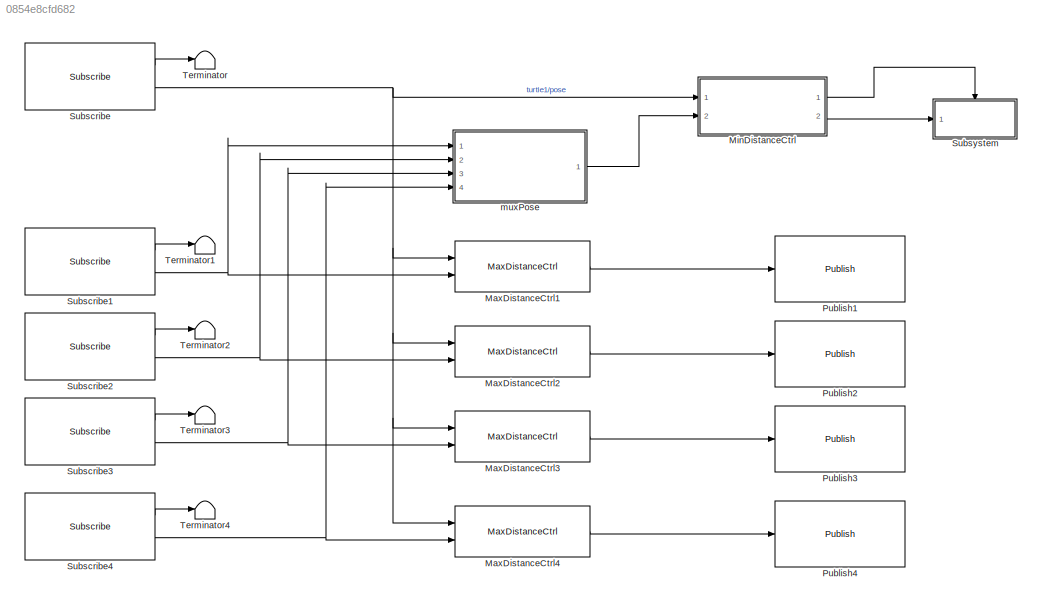
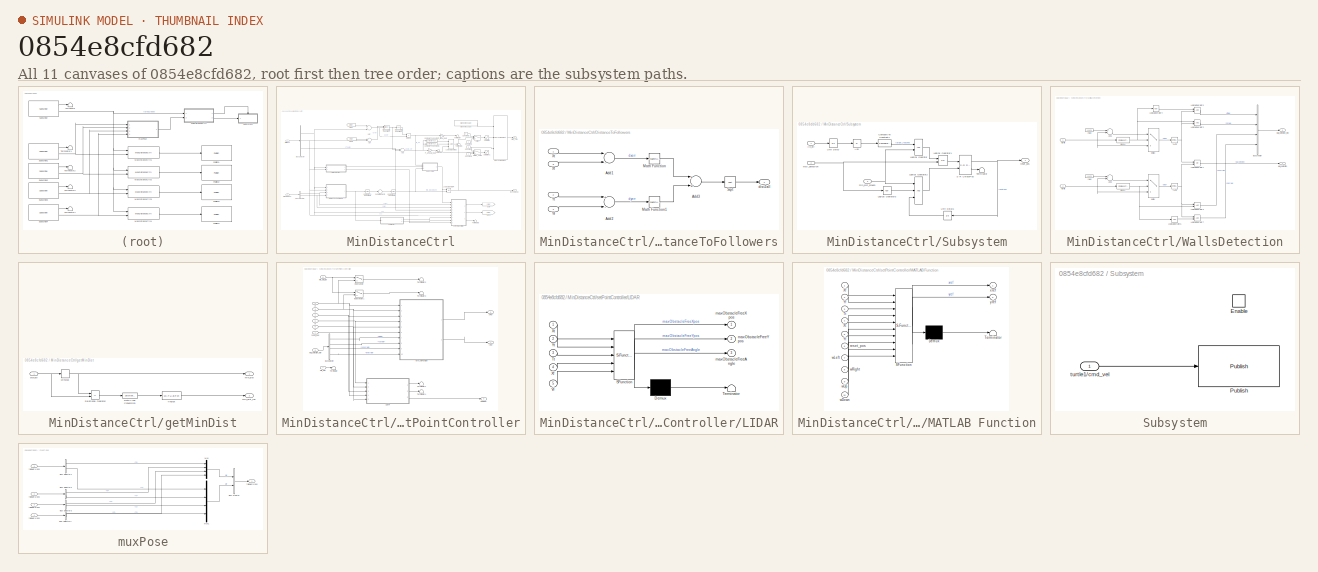
[diagram: thumbnail index - all 11 canvases of the model, root first then tree order]
MODEL slx_0854e8cfd682
KIND model
CONFIG AbsTol = auto
CONFIG EnableMultiTasking = off
CONFIG FixedStep = 0.1
CONFIG MaxStep = auto
CONFIG MinStep = auto
CONFIG RelTol = 1e-3
CONFIG SampleTimeConstraint = Unconstrained
CONFIG Solver = FixedStepAuto
CONFIG SolverName = FixedStepAuto
CONFIG StartTime = 0.0
CONFIG StopTime = inf
BLOCK [Reference] MaxDistanceCtrl1  REF=TurtleCtrlLib/MaxDistanceCtrl
  Ports = [2, 1]
  SourceBlock = TurtleCtrlLib/MaxDistanceCtrl
BLOCK [Reference] MaxDistanceCtrl2  REF=TurtleCtrlLib/MaxDistanceCtrl
  Ports = [2, 1]
  SourceBlock = TurtleCtrlLib/MaxDistanceCtrl
BLOCK [Reference] MaxDistanceCtrl3  REF=TurtleCtrlLib/MaxDistanceCtrl
  Ports = [2, 1]
  SourceBlock = TurtleCtrlLib/MaxDistanceCtrl
BLOCK [Reference] MaxDistanceCtrl4  REF=TurtleCtrlLib/MaxDistanceCtrl
  Ports = [2, 1]
  SourceBlock = TurtleCtrlLib/MaxDistanceCtrl
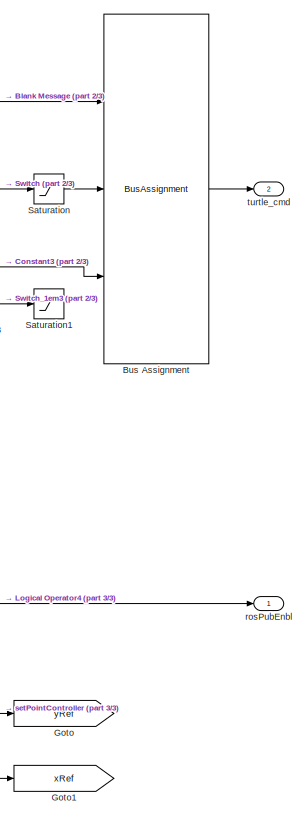
[diagram: MinDistanceCtrl - part 1/3, right side, full height]
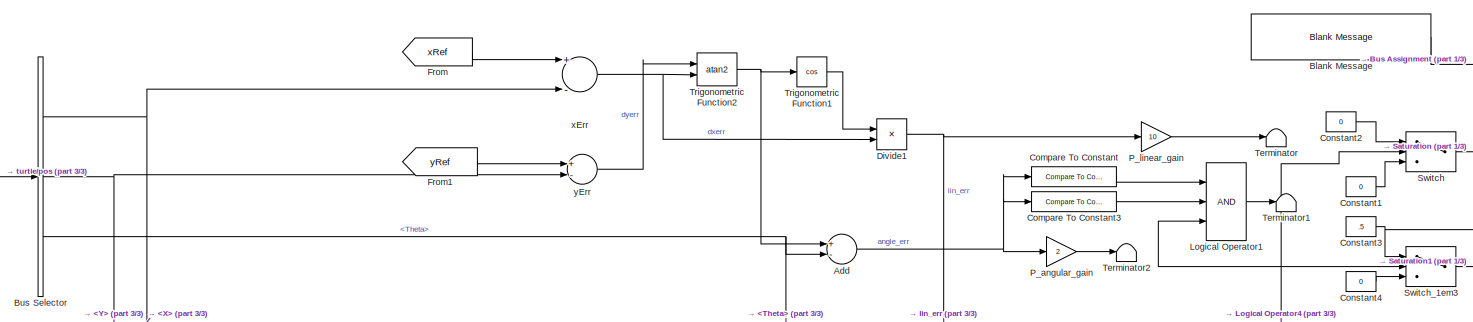
[diagram: MinDistanceCtrl - part 2/3, full width, top band]
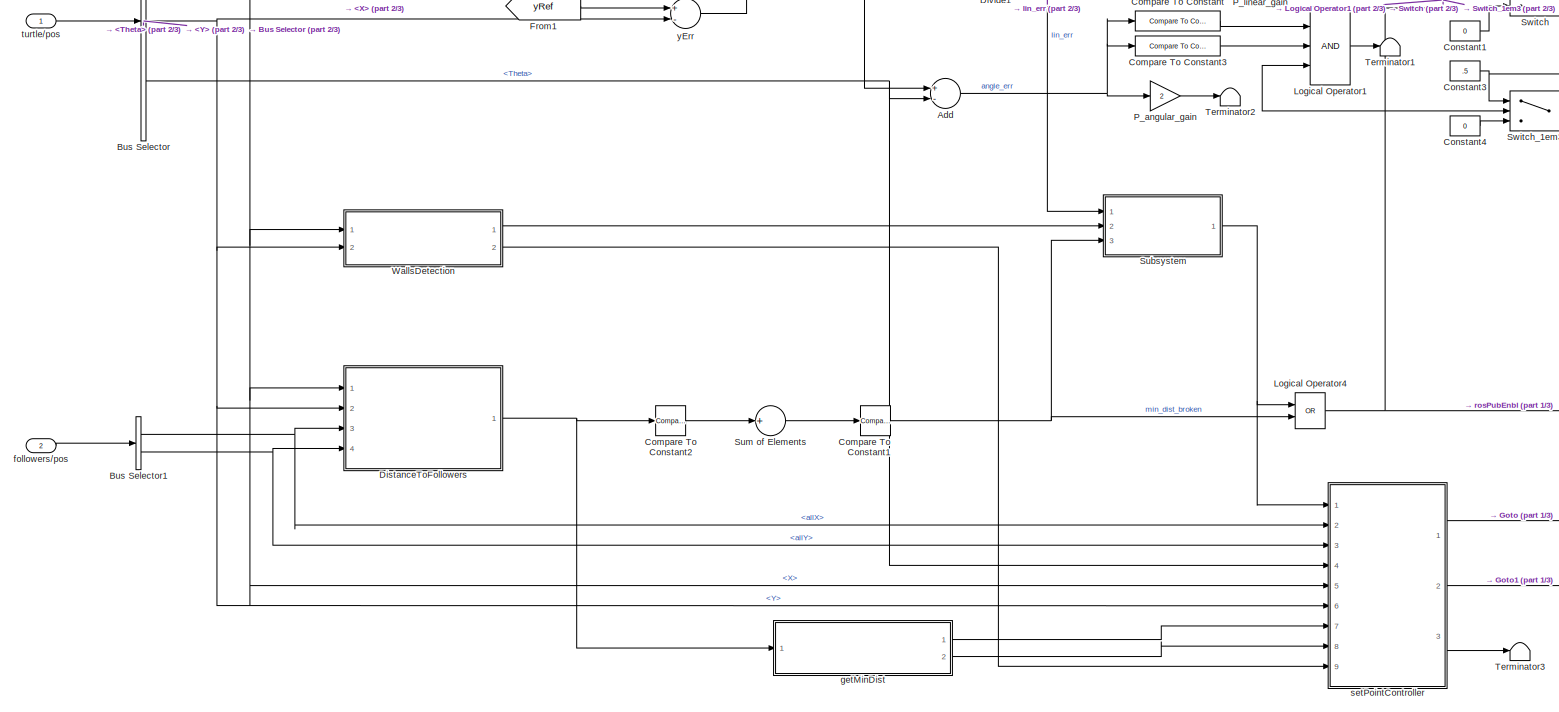
[diagram: MinDistanceCtrl - part 3/3, most of the canvas]
BLOCK [SubSystem] MinDistanceCtrl
  Ports = [2, 2]
  RequestExecContextInheritance = off
  Variant = off
BLOCK [Sum] MinDistanceCtrl/Add
  InputSameDT = off
  Inputs = +-
  OutDataTypeStr = Inherit: Inherit via internal rule
  Ports = [2, 1]
  SaturateOnIntegerOverflow = off
BLOCK [Reference] MinDistanceCtrl/Blank Message  REF=robotlib/Blank Message
  Ports = [0, 1]
  SourceBlock = robotlib/Blank Message
  SourceLibraryInfo = This block requires Robotics System Toolbox
  SourceProductBaseCode = RO
  SourceProductName = Robotics System Toolbox
  SourceType = ROS Blank Message
BLOCK [BusAssignment] MinDistanceCtrl/Bus Assignment
  AssignedSignals = Linear.X,Angular.Z
  Ports = [3, 1]
BLOCK [BusSelector] MinDistanceCtrl/Bus Selector
  OutputAsBus = off
  OutputSignals = X,Y,Theta
  Ports = [1, 3]
BLOCK [BusSelector] MinDistanceCtrl/Bus Selector1
  OutputAsBus = off
  OutputSignals = allX,allY
  Ports = [1, 2]
BLOCK [Reference] MinDistanceCtrl/Compare To Constant  REF=simulink/Logic and Bit
Operations/Compare
To Constant
  Ports = [1, 1]
  SourceBlock = simulink/Logic and Bit\nOperations/Compare\nTo Constant
  SourceProductBaseCode = SL
  SourceProductName = Simulink
  SourceType = Compare To Constant
BLOCK [Reference] MinDistanceCtrl/Compare To Constant1  REF=simulink/Logic and Bit
Operations/Compare
To Constant
  Ports = [1, 1]
  SourceBlock = simulink/Logic and Bit\nOperations/Compare\nTo Constant
  SourceProductBaseCode = SL
  SourceProductName = Simulink
  SourceType = Compare To Constant
BLOCK [Reference] MinDistanceCtrl/Compare To Constant2  REF=simulink/Logic and Bit
Operations/Compare
To Constant
  Ports = [1, 1]
  SourceBlock = simulink/Logic and Bit\nOperations/Compare\nTo Constant
  SourceProductBaseCode = SL
  SourceProductName = Simulink
  SourceType = Compare To Constant
BLOCK [Reference] MinDistanceCtrl/Compare To Constant3  REF=simulink/Logic and Bit
Operations/Compare
To Constant
  Ports = [1, 1]
  SourceBlock = simulink/Logic and Bit\nOperations/Compare\nTo Constant
  SourceProductBaseCode = SL
  SourceProductName = Simulink
  SourceType = Compare To Constant
BLOCK [Constant] MinDistanceCtrl/Constant1
  Value = 0
BLOCK [Constant] MinDistanceCtrl/Constant2
  Value = 0
BLOCK [Constant] MinDistanceCtrl/Constant3
  Value = .5
BLOCK [Constant] MinDistanceCtrl/Constant4
  Value = 0
BLOCK [SubSystem] MinDistanceCtrl/DistanceToFollowers
  Ports = [4, 1]
  RequestExecContextInheritance = off
  TreatAsAtomicUnit = on
  Variant = off
BLOCK [Sum] MinDistanceCtrl/DistanceToFollowers/Add1
  InputSameDT = off
  Inputs = +-
  OutDataTypeStr = Inherit: Inherit via internal rule
  Ports = [2, 1]
  SaturateOnIntegerOverflow = off
BLOCK [Sum] MinDistanceCtrl/DistanceToFollowers/Add2
  InputSameDT = off
  Inputs = +-
  OutDataTypeStr = Inherit: Inherit via internal rule
  Ports = [2, 1]
  SaturateOnIntegerOverflow = off
BLOCK [Sum] MinDistanceCtrl/DistanceToFollowers/Add3
  InputSameDT = off
  OutDataTypeStr = Inherit: Inherit via internal rule
  Ports = [2, 1]
  SaturateOnIntegerOverflow = off
BLOCK [Math] MinDistanceCtrl/DistanceToFollowers/Math Function
  Operator = magnitude^2
  Ports = [1, 1]
BLOCK [Math] MinDistanceCtrl/DistanceToFollowers/Math Function1
  Operator = magnitude^2
  Ports = [1, 1]
BLOCK [Sqrt] MinDistanceCtrl/DistanceToFollowers/Sqrt
BLOCK [Inport] MinDistanceCtrl/DistanceToFollowers/Xf
  IconDisplay = Port number
  Port = 3
BLOCK [Inport] MinDistanceCtrl/DistanceToFollowers/Xt
  IconDisplay = Port number
BLOCK [Inport] MinDistanceCtrl/DistanceToFollowers/Yf
  IconDisplay = Port number
  Port = 4
BLOCK [Inport] MinDistanceCtrl/DistanceToFollowers/Yt
  IconDisplay = Port number
  Port = 2
BLOCK [Outport] MinDistanceCtrl/DistanceToFollowers/dist2all
  IconDisplay = Port number
BLOCK [Product] MinDistanceCtrl/Divide1
  InputSameDT = off
  Inputs = /*
  OutDataTypeStr = Inherit: Inherit via internal rule
  Ports = [2, 1]
  RndMeth = Floor
  SaturateOnIntegerOverflow = off
BLOCK [From] MinDistanceCtrl/From
  GotoTag = xRef
BLOCK [From] MinDistanceCtrl/From1
  GotoTag = yRef
BLOCK [Goto] MinDistanceCtrl/Goto
  GotoTag = yRef
BLOCK [Goto] MinDistanceCtrl/Goto1
  GotoTag = xRef
BLOCK [Logic] MinDistanceCtrl/Logical Operator1
  AllPortsSameDT = off
  Inputs = 3
  OutDataTypeStr = boolean
  Ports = [3, 1]
BLOCK [Logic] MinDistanceCtrl/Logical Operator4
  AllPortsSameDT = off
  Operator = OR
  OutDataTypeStr = boolean
  Ports = [2, 1]
BLOCK [Gain] MinDistanceCtrl/P_angular_gain
  Gain = 2
  OutDataTypeStr = Inherit: Inherit via internal rule
  ParamDataTypeStr = Inherit: Inherit via internal rule
  SaturateOnIntegerOverflow = off
BLOCK [Gain] MinDistanceCtrl/P_linear_gain
  Gain = 10
  OutDataTypeStr = Inherit: Inherit via internal rule
  ParamDataTypeStr = Inherit: Inherit via internal rule
  SaturateOnIntegerOverflow = off
BLOCK [Saturate] MinDistanceCtrl/Saturation
  InputPortMap = u0
  LowerLimit = -1
  Ports = [1, 1]
  UpperLimit = 1
BLOCK [Saturate] MinDistanceCtrl/Saturation1
  InputPortMap = u0
  LowerLimit = -10
  Ports = [1, 1]
  UpperLimit = 10
BLOCK [SubSystem] MinDistanceCtrl/Subsystem
  Ports = [3, 1]
  RequestExecContextInheritance = off
  Variant = off
BLOCK [Abs] MinDistanceCtrl/Subsystem/Abs
  SaturateOnIntegerOverflow = off
BLOCK [Reference] MinDistanceCtrl/Subsystem/Compare To Constant4  REF=simulink/Logic and Bit
Operations/Compare
To Constant
  Ports = [1, 1]
  SourceBlock = simulink/Logic and Bit\nOperations/Compare\nTo Constant
  SourceProductBaseCode = SL
  SourceProductName = Simulink
  SourceType = Compare To Constant
BLOCK [Logic] MinDistanceCtrl/Subsystem/Logical Operator
  AllPortsSameDT = off
  OutDataTypeStr = boolean
  Ports = [2, 1]
BLOCK [Logic] MinDistanceCtrl/Subsystem/Logical Operator1
  AllPortsSameDT = off
  Operator = OR
  OutDataTypeStr = boolean
  Ports = [2, 1]
BLOCK [Logic] MinDistanceCtrl/Subsystem/Logical Operator2
  AllPortsSameDT = off
  Inputs = 3
  OutDataTypeStr = boolean
  Ports = [3, 1]
BLOCK [Logic] MinDistanceCtrl/Subsystem/Logical Operator3
  AllPortsSameDT = off
  Operator = NOT
  OutDataTypeStr = boolean
  Ports = [1, 1]
BLOCK [Reference] MinDistanceCtrl/Subsystem/S-R UnlockPos  REF=simulink_extras/Flip Flops/S-R
Flip-Flop
  Ports = [2, 2]
  SourceBlock = simulink_extras/Flip Flops/S-R\nFlip-Flop
  SourceProductBaseCode = SL
  SourceProductName = Simulink
  SourceType = SRFlipFlop
BLOCK [Terminator] MinDistanceCtrl/Subsystem/Terminator
BLOCK [UnitDelay] MinDistanceCtrl/Subsystem/Unit Delay
  InitialCondition = 11
  InputProcessing = Elements as channels (sample based)
  SampleTime = -1
BLOCK [UnitDelay] MinDistanceCtrl/Subsystem/Unit Delay1
  InitialCondition = 11
  InputProcessing = Elements as channels (sample based)
  SampleTime = -1
BLOCK [Inport] MinDistanceCtrl/Subsystem/lin_err
  IconDisplay = Port number
BLOCK [Inport] MinDistanceCtrl/Subsystem/min_dist_broken
  IconDisplay = Port number
  Port = 3
BLOCK [Outport] MinDistanceCtrl/Subsystem/reset_pos
  IconDisplay = Port number
BLOCK [Inport] MinDistanceCtrl/Subsystem/wall_detection
  IconDisplay = Port number
  Port = 2
BLOCK [Sum] MinDistanceCtrl/Sum of Elements
  InputSameDT = off
  Inputs = +
  OutDataTypeStr = Inherit: Inherit via internal rule
  Ports = [1, 1]
  SaturateOnIntegerOverflow = off
BLOCK [Switch] MinDistanceCtrl/Switch
  Criteria = u2 ~= 0
  InputSameDT = off
  SaturateOnIntegerOverflow = off
BLOCK [Switch] MinDistanceCtrl/Switch_1em3
  Criteria = u2 ~= 0
  InputSameDT = off
  SaturateOnIntegerOverflow = off
  Threshold = 1e-3
BLOCK [Terminator] MinDistanceCtrl/Terminator
BLOCK [Terminator] MinDistanceCtrl/Terminator1
BLOCK [Terminator] MinDistanceCtrl/Terminator2
BLOCK [Terminator] MinDistanceCtrl/Terminator3
BLOCK [Trigonometry] MinDistanceCtrl/Trigonometric Function1
  Operator = cos
  Ports = [1, 1]
BLOCK [Trigonometry] MinDistanceCtrl/Trigonometric Function2
  Operator = atan2
  Ports = [2, 1]
BLOCK [SubSystem] MinDistanceCtrl/WallsDetection
  Ports = [2, 2]
  RequestExecContextInheritance = off
  TreatAsAtomicUnit = on
  Variant = off
BLOCK [Sum] MinDistanceCtrl/WallsDetection/Add1
  InputSameDT = off
  Inputs = +-
  OutDataTypeStr = Inherit: Inherit via internal rule
  Ports = [2, 1]
  SaturateOnIntegerOverflow = off
BLOCK [Sum] MinDistanceCtrl/WallsDetection/Add2
  InputSameDT = off
  Inputs = +-
  OutDataTypeStr = Inherit: Inherit via internal rule
  Ports = [2, 1]
  SaturateOnIntegerOverflow = off
BLOCK [BusCreator] MinDistanceCtrl/WallsDetection/Bus Creator
  DisplayOption = bar
  InheritFromInputs = on
  Inputs = 4
  Ports = [4, 1]
BLOCK [Logic] MinDistanceCtrl/WallsDetection/Logical Operator1
  AllPortsSameDT = off
  Operator = OR
  OutDataTypeStr = boolean
  Ports = [2, 1]
BLOCK [Logic] MinDistanceCtrl/WallsDetection/Logical Operator2
  AllPortsSameDT = off
  OutDataTypeStr = boolean
  Ports = [2, 1]
BLOCK [Logic] MinDistanceCtrl/WallsDetection/Logical Operator3
  AllPortsSameDT = off
  OutDataTypeStr = boolean
  Ports = [2, 1]
BLOCK [Logic] MinDistanceCtrl/WallsDetection/Logical Operator4
  AllPortsSameDT = off
  Operator = NOT
  OutDataTypeStr = boolean
  Ports = [1, 1]
BLOCK [Logic] MinDistanceCtrl/WallsDetection/Logical Operator5
  AllPortsSameDT = off
  OutDataTypeStr = boolean
  Ports = [2, 1]
BLOCK [Logic] MinDistanceCtrl/WallsDetection/Logical Operator6
  AllPortsSameDT = off
  Operator = NOT
  OutDataTypeStr = boolean
  Ports = [1, 1]
BLOCK [Logic] MinDistanceCtrl/WallsDetection/Logical Operator7
  AllPortsSameDT = off
  OutDataTypeStr = boolean
  Ports = [2, 1]
BLOCK [Inport] MinDistanceCtrl/WallsDetection/Xturtle
  IconDisplay = Port number
BLOCK [Inport] MinDistanceCtrl/WallsDetection/Yturtle
  IconDisplay = Port number
  Port = 2
BLOCK [Switch] MinDistanceCtrl/WallsDetection/deltaX
  Criteria = u2 ~= 0
  InputSameDT = off
  SaturateOnIntegerOverflow = off
  Threshold = 5.5
BLOCK [Switch] MinDistanceCtrl/WallsDetection/deltaY
  Criteria = u2 ~= 0
  InputSameDT = off
  SaturateOnIntegerOverflow = off
  Threshold = 5.5
BLOCK [Reference] MinDistanceCtrl/WallsDetection/meanX  REF=simulink/Logic and Bit
Operations/Compare
To Constant
  Ports = [1, 1]
  SourceBlock = simulink/Logic and Bit\nOperations/Compare\nTo Constant
  SourceProductBaseCode = SL
  SourceProductName = Simulink
  SourceType = Compare To Constant
BLOCK [Reference] MinDistanceCtrl/WallsDetection/meanY  REF=simulink/Logic and Bit
Operations/Compare
To Constant
  Ports = [1, 1]
  SourceBlock = simulink/Logic and Bit\nOperations/Compare\nTo Constant
  SourceProductBaseCode = SL
  SourceProductName = Simulink
  SourceType = Compare To Constant
BLOCK [Outport] MinDistanceCtrl/WallsDetection/wall_detection
  IconDisplay = Port number
BLOCK [Outport] MinDistanceCtrl/WallsDetection/wall_detection_info
  IconDisplay = Port number
  Port = 2
BLOCK [Reference] MinDistanceCtrl/WallsDetection/xActv  REF=simulink/Logic and Bit
Operations/Compare
To Constant
  Ports = [1, 1]
  SourceBlock = simulink/Logic and Bit\nOperations/Compare\nTo Constant
  SourceProductBaseCode = SL
  SourceProductName = Simulink
  SourceType = Compare To Constant
BLOCK [Constant] MinDistanceCtrl/WallsDetection/xMax
  Value = 11.121
BLOCK [Reference] MinDistanceCtrl/WallsDetection/yActv  REF=simulink/Logic and Bit
Operations/Compare
To Constant
  Ports = [1, 1]
  SourceBlock = simulink/Logic and Bit\nOperations/Compare\nTo Constant
  SourceProductBaseCode = SL
  SourceProductName = Simulink
  SourceType = Compare To Constant
BLOCK [Constant] MinDistanceCtrl/WallsDetection/yMax
  Value = 11.121
BLOCK [Inport] MinDistanceCtrl/followers//pos
  IconDisplay = Port number
  Port = 2
BLOCK [SubSystem] MinDistanceCtrl/getMinDist
  Ports = [1, 2]
  RequestExecContextInheritance = off
  Variant = off
BLOCK [DataTypeConversion] MinDistanceCtrl/getMinDist/Data Type Conversion
  OutDataTypeStr = double
  RndMeth = Floor
  SaturateOnIntegerOverflow = off
BLOCK [MinMax] MinDistanceCtrl/getMinDist/MinMax
  InputSameDT = off
  Ports = [1, 1]
  SaturateOnIntegerOverflow = off
BLOCK [RelationalOperator] MinDistanceCtrl/getMinDist/Relational Operator
  InputSameDT = off
  Operator = ==
  OutDataTypeStr = boolean
  Ports = [2, 1]
  RndMeth = Simplest
BLOCK [Inport] MinDistanceCtrl/getMinDist/dist2all
  IconDisplay = Port number
BLOCK [MATLABFcn] MinDistanceCtrl/getMinDist/findIdx
  MATLABFcn = find
  Ports = [1, 1]
BLOCK [Outport] MinDistanceCtrl/getMinDist/min_dist
  IconDisplay = Port number
BLOCK [Outport] MinDistanceCtrl/getMinDist/min_dist_idx
  IconDisplay = Port number
  Port = 2
BLOCK [Outport] MinDistanceCtrl/rosPubEnbl
  IconDisplay = Port number
BLOCK [SubSystem] MinDistanceCtrl/setPointController
  Ports = [9, 3]
  RequestExecContextInheritance = off
  Variant = off
BLOCK [BusSelector] MinDistanceCtrl/setPointController/Bus Selector
  OutputAsBus = off
  OutputSignals = leftWall,righWall,upperWall,lowerWall
  Ports = [1, 4]
BLOCK [MultiPortSwitch] MinDistanceCtrl/setPointController/Index Vector
  InputSameDT = off
  Inputs = 1
  Ports = [2, 1]
  SaturateOnIntegerOverflow = off
BLOCK [MultiPortSwitch] MinDistanceCtrl/setPointController/Index Vector1
  InputSameDT = off
  Inputs = 1
  Ports = [2, 1]
  SaturateOnIntegerOverflow = off
BLOCK [SubSystem] MinDistanceCtrl/setPointController/LIDAR
  ErrorFcn = Stateflow.Translate.translate
  PermitHierarchicalResolution = ExplicitOnly
  Ports = [5, 3]
  RequestExecContextInheritance = off
  SFBlockType = MATLAB Function
  TreatAsAtomicUnit = on
  Variant = off
BLOCK [Demux] MinDistanceCtrl/setPointController/LIDAR/ Demux 
  Outputs = 1
  Ports = [1, 1]
BLOCK [S-Function] MinDistanceCtrl/setPointController/LIDAR/ SFunction 
  EnableBusSupport = on
  FunctionName = sf_sfun
  PortCounts = [5 4]
  Ports = [5, 4]
  SFcnIsStateOwnerBlock = off
  SFunctionDeploymentMode = off
  Tag = Stateflow S-Function turtleCtrlFollower 1
BLOCK [Terminator] MinDistanceCtrl/setPointController/LIDAR/ Terminator 
BLOCK [Inport] MinDistanceCtrl/setPointController/LIDAR/Tt
  IconDisplay = Port number
  Port = 3
BLOCK [Inport] MinDistanceCtrl/setPointController/LIDAR/Xf
  IconDisplay = Port number
  Port = 4
BLOCK [Inport] MinDistanceCtrl/setPointController/LIDAR/Xt
  IconDisplay = Port number
BLOCK [Inport] MinDistanceCtrl/setPointController/LIDAR/Yf
  IconDisplay = Port number
  Port = 5
BLOCK [Inport] MinDistanceCtrl/setPointController/LIDAR/Yt
  IconDisplay = Port number
  Port = 2
BLOCK [Outport] MinDistanceCtrl/setPointController/LIDAR/maxObstacleFreeAngle
  IconDisplay = Port number
  Port = 3
BLOCK [Outport] MinDistanceCtrl/setPointController/LIDAR/maxObstacleFreeXpos
  IconDisplay = Port number
BLOCK [Outport] MinDistanceCtrl/setPointController/LIDAR/maxObstacleFreeYpos
  IconDisplay = Port number
  Port = 2
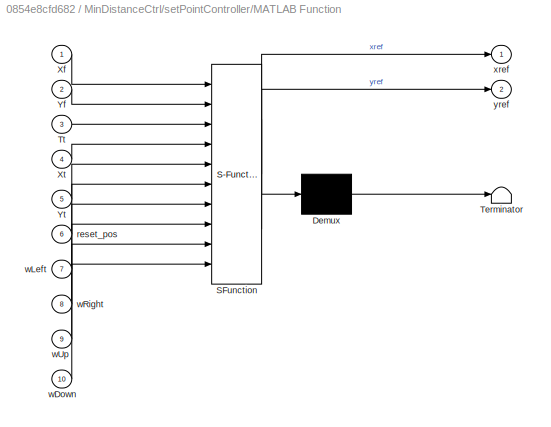
BLOCK [SubSystem] MinDistanceCtrl/setPointController/MATLAB Function
  ErrorFcn = Stateflow.Translate.translate
  PermitHierarchicalResolution = ExplicitOnly
  Ports = [10, 2]
  RequestExecContextInheritance = off
  SFBlockType = MATLAB Function
  TreatAsAtomicUnit = on
  Variant = off
BLOCK [Demux] MinDistanceCtrl/setPointController/MATLAB Function/ Demux 
  Outputs = 1
  Ports = [1, 1]
BLOCK [S-Function] MinDistanceCtrl/setPointController/MATLAB Function/ SFunction 
  EnableBusSupport = on
  FunctionName = sf_sfun
  PortCounts = [10 3]
  Ports = [10, 3]
  SFcnIsStateOwnerBlock = off
  SFunctionDeploymentMode = off
  Tag = Stateflow S-Function turtleCtrlFollower 2
BLOCK [Terminator] MinDistanceCtrl/setPointController/MATLAB Function/ Terminator 
BLOCK [Inport] MinDistanceCtrl/setPointController/MATLAB Function/Tt
  IconDisplay = Port number
  Port = 3
BLOCK [Inport] MinDistanceCtrl/setPointController/MATLAB Function/Xf
  IconDisplay = Port number
BLOCK [Inport] MinDistanceCtrl/setPointController/MATLAB Function/Xt
  IconDisplay = Port number
  Port = 4
BLOCK [Inport] MinDistanceCtrl/setPointController/MATLAB Function/Yf
  IconDisplay = Port number
  Port = 2
BLOCK [Inport] MinDistanceCtrl/setPointController/MATLAB Function/Yt
  IconDisplay = Port number
  Port = 5
BLOCK [Inport] MinDistanceCtrl/setPointController/MATLAB Function/reset_pos
  IconDisplay = Port number
  Port = 6
BLOCK [Inport] MinDistanceCtrl/setPointController/MATLAB Function/wDown
  IconDisplay = Port number
  Port = 10
BLOCK [Inport] MinDistanceCtrl/setPointController/MATLAB Function/wLeft
  IconDisplay = Port number
  Port = 7
BLOCK [Inport] MinDistanceCtrl/setPointController/MATLAB Function/wRight
  IconDisplay = Port number
  Port = 8
BLOCK [Inport] MinDistanceCtrl/setPointController/MATLAB Function/wUp
  IconDisplay = Port number
  Port = 9
BLOCK [Outport] MinDistanceCtrl/setPointController/MATLAB Function/xref
  IconDisplay = Port number
BLOCK [Outport] MinDistanceCtrl/setPointController/MATLAB Function/yref
  IconDisplay = Port number
  Port = 2
BLOCK [Terminator] MinDistanceCtrl/setPointController/Terminator
BLOCK [Terminator] MinDistanceCtrl/setPointController/Terminator1
BLOCK [Terminator] MinDistanceCtrl/setPointController/Terminator2
BLOCK [Terminator] MinDistanceCtrl/setPointController/Terminator3
BLOCK [Terminator] MinDistanceCtrl/setPointController/Terminator4
BLOCK [Inport] MinDistanceCtrl/setPointController/Tt
  IconDisplay = Port number
  Port = 4
BLOCK [Inport] MinDistanceCtrl/setPointController/Xf
  IconDisplay = Port number
  Port = 2
BLOCK [Inport] MinDistanceCtrl/setPointController/Xt
  IconDisplay = Port number
  Port = 5
BLOCK [Inport] MinDistanceCtrl/setPointController/Yf
  IconDisplay = Port number
  Port = 3
BLOCK [Inport] MinDistanceCtrl/setPointController/Yt
  IconDisplay = Port number
  Port = 6
BLOCK [Inport] MinDistanceCtrl/setPointController/min_dist
  IconDisplay = Port number
  Port = 7
BLOCK [Inport] MinDistanceCtrl/setPointController/min_dist_idx
  IconDisplay = Port number
  Port = 8
BLOCK [Inport] MinDistanceCtrl/setPointController/reset_pos
  IconDisplay = Port number
BLOCK [Outport] MinDistanceCtrl/setPointController/thetaRef
  IconDisplay = Port number
  Port = 3
BLOCK [Inport] MinDistanceCtrl/setPointController/wall_detection_info
  IconDisplay = Port number
  Port = 9
BLOCK [Outport] MinDistanceCtrl/setPointController/xRef
  IconDisplay = Port number
  Port = 2
BLOCK [Outport] MinDistanceCtrl/setPointController/yRef
  IconDisplay = Port number
BLOCK [Inport] MinDistanceCtrl/turtle//pos
  IconDisplay = Port number
BLOCK [Outport] MinDistanceCtrl/turtle_cmd
  IconDisplay = Port number
  Port = 2
BLOCK [Sum] MinDistanceCtrl/xErr
  InputSameDT = off
  Inputs = +-
  OutDataTypeStr = Inherit: Inherit via internal rule
  Ports = [2, 1]
  SaturateOnIntegerOverflow = off
BLOCK [Sum] MinDistanceCtrl/yErr
  InputSameDT = off
  Inputs = +-
  OutDataTypeStr = Inherit: Inherit via internal rule
  Ports = [2, 1]
  SaturateOnIntegerOverflow = off
BLOCK [Reference] Publish1  REF=robotlib/Publish
  Ports = [1]
  SourceBlock = robotlib/Publish
  SourceLibraryInfo = This block requires Robotics System Toolbox
  SourceProductBaseCode = RO
  SourceProductName = Robotics System Toolbox
  SourceType = ROS Publish
BLOCK [Reference] Publish2  REF=robotlib/Publish
  Ports = [1]
  SourceBlock = robotlib/Publish
  SourceLibraryInfo = This block requires Robotics System Toolbox
  SourceProductBaseCode = RO
  SourceProductName = Robotics System Toolbox
  SourceType = ROS Publish
BLOCK [Reference] Publish3  REF=robotlib/Publish
  Ports = [1]
  SourceBlock = robotlib/Publish
  SourceLibraryInfo = This block requires Robotics System Toolbox
  SourceProductBaseCode = RO
  SourceProductName = Robotics System Toolbox
  SourceType = ROS Publish
BLOCK [Reference] Publish4  REF=robotlib/Publish
  Ports = [1]
  SourceBlock = robotlib/Publish
  SourceLibraryInfo = This block requires Robotics System Toolbox
  SourceProductBaseCode = RO
  SourceProductName = Robotics System Toolbox
  SourceType = ROS Publish
BLOCK [Reference] Subscribe  REF=robotlib/Subscribe
  Ports = [0, 2]
  SourceBlock = robotlib/Subscribe
  SourceLibraryInfo = This block requires Robotics System Toolbox
  SourceProductBaseCode = RO
  SourceProductName = Robotics System Toolbox
  SourceType = ROS Subscribe
BLOCK [Reference] Subscribe1  REF=robotlib/Subscribe
  Ports = [0, 2]
  SourceBlock = robotlib/Subscribe
  SourceLibraryInfo = This block requires Robotics System Toolbox
  SourceProductBaseCode = RO
  SourceProductName = Robotics System Toolbox
  SourceType = ROS Subscribe
BLOCK [Reference] Subscribe2  REF=robotlib/Subscribe
  Ports = [0, 2]
  SourceBlock = robotlib/Subscribe
  SourceLibraryInfo = This block requires Robotics System Toolbox
  SourceProductBaseCode = RO
  SourceProductName = Robotics System Toolbox
  SourceType = ROS Subscribe
BLOCK [Reference] Subscribe3  REF=robotlib/Subscribe
  Ports = [0, 2]
  SourceBlock = robotlib/Subscribe
  SourceLibraryInfo = This block requires Robotics System Toolbox
  SourceProductBaseCode = RO
  SourceProductName = Robotics System Toolbox
  SourceType = ROS Subscribe
BLOCK [Reference] Subscribe4  REF=robotlib/Subscribe
  Ports = [0, 2]
  SourceBlock = robotlib/Subscribe
  SourceLibraryInfo = This block requires Robotics System Toolbox
  SourceProductBaseCode = RO
  SourceProductName = Robotics System Toolbox
  SourceType = ROS Subscribe
BLOCK [SubSystem] Subsystem
  Ports = [1, 0, 1]
  RequestExecContextInheritance = off
  Variant = off
BLOCK [EnablePort] Subsystem/Enable
  Ports = []
BLOCK [Reference] Subsystem/Publish  REF=robotlib/Publish
  Ports = [1]
  SourceBlock = robotlib/Publish
  SourceLibraryInfo = This block requires Robotics System Toolbox
  SourceProductBaseCode = RO
  SourceProductName = Robotics System Toolbox
  SourceType = ROS Publish
BLOCK [Inport] Subsystem/turtle1//cmd_vel
  IconDisplay = Port number
BLOCK [Terminator] Terminator
BLOCK [Terminator] Terminator1
BLOCK [Terminator] Terminator2
BLOCK [Terminator] Terminator3
BLOCK [Terminator] Terminator4
BLOCK [SubSystem] muxPose
  Ports = [4, 1]
  RequestExecContextInheritance = off
  TreatAsAtomicUnit = on
  Variant = off
BLOCK [BusCreator] muxPose/Bus Creator
  DisplayOption = bar
  InheritFromInputs = on
  Inputs = 2
  Ports = [2, 1]
BLOCK [BusSelector] muxPose/Bus Selector1
  OutputAsBus = off
  OutputSignals = X,Y
  Ports = [1, 2]
BLOCK [BusSelector] muxPose/Bus Selector2
  OutputAsBus = off
  OutputSignals = X,Y
  Ports = [1, 2]
BLOCK [BusSelector] muxPose/Bus Selector3
  OutputAsBus = off
  OutputSignals = X,Y
  Ports = [1, 2]
BLOCK [BusSelector] muxPose/Bus Selector4
  OutputAsBus = off
  OutputSignals = X,Y
  Ports = [1, 2]
BLOCK [Mux] muxPose/Mux
  DisplayOption = bar
  Ports = [4, 1]
BLOCK [Mux] muxPose/Mux1
  DisplayOption = bar
  Ports = [4, 1]
BLOCK [Inport] muxPose/follower1//pos
  IconDisplay = Port number
BLOCK [Inport] muxPose/follower2//pos
  IconDisplay = Port number
  Port = 2
BLOCK [Inport] muxPose/follower3//pos
  IconDisplay = Port number
  Port = 3
BLOCK [Inport] muxPose/follower4//pos
  IconDisplay = Port number
  Port = 4
BLOCK [Outport] muxPose/followers//pos
  IconDisplay = Port number
LINE MaxDistanceCtrl1:1 -> Publish1:1
LINE MaxDistanceCtrl2:1 -> Publish2:1
LINE MaxDistanceCtrl3:1 -> Publish3:1
LINE MaxDistanceCtrl4:1 -> Publish4:1
NET MinDistanceCtrl/Add:1 -> MinDistanceCtrl/Compare To Constant3:1, MinDistanceCtrl/Compare To Constant:1, MinDistanceCtrl/P_angular_gain:1
LINE MinDistanceCtrl/Blank Message:1 -> MinDistanceCtrl/Bus Assignment:1
LINE MinDistanceCtrl/Bus Assignment:1 -> MinDistanceCtrl/turtle_cmd:1
NET MinDistanceCtrl/Bus Selector1:1 -> MinDistanceCtrl/DistanceToFollowers:3, MinDistanceCtrl/setPointController:2
NET MinDistanceCtrl/Bus Selector1:2 -> MinDistanceCtrl/DistanceToFollowers:4, MinDistanceCtrl/setPointController:3
NET MinDistanceCtrl/Bus Selector:1 -> MinDistanceCtrl/DistanceToFollowers:1, MinDistanceCtrl/WallsDetection:1, MinDistanceCtrl/setPointController:5, MinDistanceCtrl/xErr:2
NET MinDistanceCtrl/Bus Selector:2 -> MinDistanceCtrl/DistanceToFollowers:2, MinDistanceCtrl/WallsDetection:2, MinDistanceCtrl/setPointController:6, MinDistanceCtrl/yErr:2
NET MinDistanceCtrl/Bus Selector:3 -> MinDistanceCtrl/Add:2, MinDistanceCtrl/setPointController:4
NET MinDistanceCtrl/Compare To Constant1:1 -> MinDistanceCtrl/Logical Operator4:2, MinDistanceCtrl/Subsystem:3
LINE MinDistanceCtrl/Compare To Constant2:1 -> MinDistanceCtrl/Sum of Elements:1
LINE MinDistanceCtrl/Compare To Constant3:1 -> MinDistanceCtrl/Logical Operator1:2
LINE MinDistanceCtrl/Compare To Constant:1 -> MinDistanceCtrl/Logical Operator1:1
LINE MinDistanceCtrl/Constant1:1 -> MinDistanceCtrl/Switch:3
LINE MinDistanceCtrl/Constant2:1 -> MinDistanceCtrl/Switch:1
NET MinDistanceCtrl/Constant3:1 -> MinDistanceCtrl/Bus Assignment:3, MinDistanceCtrl/Switch_1em3:1
LINE MinDistanceCtrl/Constant4:1 -> MinDistanceCtrl/Switch_1em3:3
LINE MinDistanceCtrl/DistanceToFollowers/Add1:1 -> MinDistanceCtrl/DistanceToFollowers/Math Function:1
LINE MinDistanceCtrl/DistanceToFollowers/Add2:1 -> MinDistanceCtrl/DistanceToFollowers/Math Function1:1
LINE MinDistanceCtrl/DistanceToFollowers/Add3:1 -> MinDistanceCtrl/DistanceToFollowers/Sqrt:1
LINE MinDistanceCtrl/DistanceToFollowers/Math Function1:1 -> MinDistanceCtrl/DistanceToFollowers/Add3:2
LINE MinDistanceCtrl/DistanceToFollowers/Math Function:1 -> MinDistanceCtrl/DistanceToFollowers/Add3:1
LINE MinDistanceCtrl/DistanceToFollowers/Sqrt:1 -> MinDistanceCtrl/DistanceToFollowers/dist2all:1
LINE MinDistanceCtrl/DistanceToFollowers/Xf:1 -> MinDistanceCtrl/DistanceToFollowers/Add1:2
LINE MinDistanceCtrl/DistanceToFollowers/Xt:1 -> MinDistanceCtrl/DistanceToFollowers/Add1:1
LINE MinDistanceCtrl/DistanceToFollowers/Yf:1 -> MinDistanceCtrl/DistanceToFollowers/Add2:2
LINE MinDistanceCtrl/DistanceToFollowers/Yt:1 -> MinDistanceCtrl/DistanceToFollowers/Add2:1
NET MinDistanceCtrl/DistanceToFollowers:1 -> MinDistanceCtrl/Compare To Constant2:1, MinDistanceCtrl/getMinDist:1
NET MinDistanceCtrl/Divide1:1 -> MinDistanceCtrl/P_linear_gain:1, MinDistanceCtrl/Subsystem:1
LINE MinDistanceCtrl/From1:1 -> MinDistanceCtrl/yErr:1
LINE MinDistanceCtrl/From:1 -> MinDistanceCtrl/xErr:1
LINE MinDistanceCtrl/Logical Operator1:1 -> MinDistanceCtrl/Terminator1:1
NET MinDistanceCtrl/Logical Operator4:1 -> MinDistanceCtrl/Logical Operator1:3, MinDistanceCtrl/Switch:2, MinDistanceCtrl/Switch_1em3:2, MinDistanceCtrl/rosPubEnbl:1
LINE MinDistanceCtrl/P_angular_gain:1 -> MinDistanceCtrl/Terminator2:1
LINE MinDistanceCtrl/P_linear_gain:1 -> MinDistanceCtrl/Terminator:1
LINE MinDistanceCtrl/Saturation:1 -> MinDistanceCtrl/Bus Assignment:2
LINE MinDistanceCtrl/Subsystem/Abs:1 -> MinDistanceCtrl/Subsystem/Compare To Constant4:1
LINE MinDistanceCtrl/Subsystem/Compare To Constant4:1 -> MinDistanceCtrl/Subsystem/Logical Operator:1
LINE MinDistanceCtrl/Subsystem/Logical Operator1:1 -> MinDistanceCtrl/Subsystem/S-R UnlockPos:1
LINE MinDistanceCtrl/Subsystem/Logical Operator2:1 -> MinDistanceCtrl/Subsystem/S-R UnlockPos:2
LINE MinDistanceCtrl/Subsystem/Logical Operator3:1 -> MinDistanceCtrl/Subsystem/Logical Operator2:2
LINE MinDistanceCtrl/Subsystem/Logical Operator:1 -> MinDistanceCtrl/Subsystem/Logical Operator1:1
NET MinDistanceCtrl/Subsystem/S-R UnlockPos:1 -> MinDistanceCtrl/Subsystem/Unit Delay1:1, MinDistanceCtrl/Subsystem/reset_pos:1
LINE MinDistanceCtrl/Subsystem/S-R UnlockPos:2 -> MinDistanceCtrl/Subsystem/Terminator:1
LINE MinDistanceCtrl/Subsystem/Unit Delay1:1 -> MinDistanceCtrl/Subsystem/Logical Operator2:3
LINE MinDistanceCtrl/Subsystem/Unit Delay:1 -> MinDistanceCtrl/Subsystem/Abs:1
LINE MinDistanceCtrl/Subsystem/lin_err:1 -> MinDistanceCtrl/Subsystem/Unit Delay:1
NET MinDistanceCtrl/Subsystem/min_dist_broken:1 -> MinDistanceCtrl/Subsystem/Logical Operator2:1, MinDistanceCtrl/Subsystem/Logical Operator:2
NET MinDistanceCtrl/Subsystem/wall_detection:1 -> MinDistanceCtrl/Subsystem/Logical Operator1:2, MinDistanceCtrl/Subsystem/Logical Operator3:1
NET MinDistanceCtrl/Subsystem:1 -> MinDistanceCtrl/Logical Operator4:1, MinDistanceCtrl/setPointController:1
LINE MinDistanceCtrl/Sum of Elements:1 -> MinDistanceCtrl/Compare To Constant1:1
LINE MinDistanceCtrl/Switch:1 -> MinDistanceCtrl/Saturation:1
LINE MinDistanceCtrl/Switch_1em3:1 -> MinDistanceCtrl/Saturation1:1
LINE MinDistanceCtrl/Trigonometric Function1:1 -> MinDistanceCtrl/Divide1:1
NET MinDistanceCtrl/Trigonometric Function2:1 -> MinDistanceCtrl/Add:1, MinDistanceCtrl/Trigonometric Function1:1
LINE MinDistanceCtrl/WallsDetection/Add1:1 -> MinDistanceCtrl/WallsDetection/deltaX:1
LINE MinDistanceCtrl/WallsDetection/Add2:1 -> MinDistanceCtrl/WallsDetection/deltaY:1
LINE MinDistanceCtrl/WallsDetection/Bus Creator:1 -> MinDistanceCtrl/WallsDetection/wall_detection_info:1
LINE MinDistanceCtrl/WallsDetection/Logical Operator1:1 -> MinDistanceCtrl/WallsDetection/wall_detection:1
LINE MinDistanceCtrl/WallsDetection/Logical Operator2:1 -> MinDistanceCtrl/WallsDetection/Bus Creator:2
LINE MinDistanceCtrl/WallsDetection/Logical Operator3:1 -> MinDistanceCtrl/WallsDetection/Bus Creator:3
LINE MinDistanceCtrl/WallsDetection/Logical Operator4:1 -> MinDistanceCtrl/WallsDetection/Logical Operator5:1
LINE MinDistanceCtrl/WallsDetection/Logical Operator5:1 -> MinDistanceCtrl/WallsDetection/Bus Creator:1
LINE MinDistanceCtrl/WallsDetection/Logical Operator6:1 -> MinDistanceCtrl/WallsDetection/Logical Operator7:2
LINE MinDistanceCtrl/WallsDetection/Logical Operator7:1 -> MinDistanceCtrl/WallsDetection/Bus Creator:4
NET MinDistanceCtrl/WallsDetection/Xturtle:1 -> MinDistanceCtrl/WallsDetection/Add1:2, MinDistanceCtrl/WallsDetection/deltaX:3, MinDistanceCtrl/WallsDetection/meanX:1
NET MinDistanceCtrl/WallsDetection/Yturtle:1 -> MinDistanceCtrl/WallsDetection/Add2:2, MinDistanceCtrl/WallsDetection/deltaY:3, MinDistanceCtrl/WallsDetection/meanY:1
LINE MinDistanceCtrl/WallsDetection/deltaX:1 -> MinDistanceCtrl/WallsDetection/xActv:1
LINE MinDistanceCtrl/WallsDetection/deltaY:1 -> MinDistanceCtrl/WallsDetection/yActv:1
NET MinDistanceCtrl/WallsDetection/meanX:1 -> MinDistanceCtrl/WallsDetection/Logical Operator2:1, MinDistanceCtrl/WallsDetection/Logical Operator4:1, MinDistanceCtrl/WallsDetection/deltaX:2
NET MinDistanceCtrl/WallsDetection/meanY:1 -> MinDistanceCtrl/WallsDetection/Logical Operator3:2, MinDistanceCtrl/WallsDetection/Logical Operator6:1, MinDistanceCtrl/WallsDetection/deltaY:2
NET MinDistanceCtrl/WallsDetection/xActv:1 -> MinDistanceCtrl/WallsDetection/Logical Operator1:1, MinDistanceCtrl/WallsDetection/Logical Operator2:2, MinDistanceCtrl/WallsDetection/Logical Operator5:2
LINE MinDistanceCtrl/WallsDetection/xMax:1 -> MinDistanceCtrl/WallsDetection/Add1:1
NET MinDistanceCtrl/WallsDetection/yActv:1 -> MinDistanceCtrl/WallsDetection/Logical Operator1:2, MinDistanceCtrl/WallsDetection/Logical Operator3:1, MinDistanceCtrl/WallsDetection/Logical Operator7:1
LINE MinDistanceCtrl/WallsDetection/yMax:1 -> MinDistanceCtrl/WallsDetection/Add2:1
LINE MinDistanceCtrl/WallsDetection:1 -> MinDistanceCtrl/Subsystem:2
LINE MinDistanceCtrl/WallsDetection:2 -> MinDistanceCtrl/setPointController:9
LINE MinDistanceCtrl/followers//pos:1 -> MinDistanceCtrl/Bus Selector1:1
LINE MinDistanceCtrl/getMinDist/Data Type Conversion:1 -> MinDistanceCtrl/getMinDist/findIdx:1
NET MinDistanceCtrl/getMinDist/MinMax:1 -> MinDistanceCtrl/getMinDist/Relational Operator:1, MinDistanceCtrl/getMinDist/min_dist:1
LINE MinDistanceCtrl/getMinDist/Relational Operator:1 -> MinDistanceCtrl/getMinDist/Data Type Conversion:1
NET MinDistanceCtrl/getMinDist/dist2all:1 -> MinDistanceCtrl/getMinDist/MinMax:1, MinDistanceCtrl/getMinDist/Relational Operator:2
LINE MinDistanceCtrl/getMinDist/findIdx:1 -> MinDistanceCtrl/getMinDist/min_dist_idx:1
LINE MinDistanceCtrl/getMinDist:1 -> MinDistanceCtrl/setPointController:7
LINE MinDistanceCtrl/getMinDist:2 -> MinDistanceCtrl/setPointController:8
LINE MinDistanceCtrl/setPointController/Bus Selector:1 -> MinDistanceCtrl/setPointController/MATLAB Function:7
LINE MinDistanceCtrl/setPointController/Bus Selector:2 -> MinDistanceCtrl/setPointController/MATLAB Function:8
LINE MinDistanceCtrl/setPointController/Bus Selector:3 -> MinDistanceCtrl/setPointController/MATLAB Function:9
LINE MinDistanceCtrl/setPointController/Bus Selector:4 -> MinDistanceCtrl/setPointController/MATLAB Function:10
LINE MinDistanceCtrl/setPointController/Index Vector1:1 -> MinDistanceCtrl/setPointController/Terminator3:1
LINE MinDistanceCtrl/setPointController/Index Vector:1 -> MinDistanceCtrl/setPointController/Terminator2:1
LINE MinDistanceCtrl/setPointController/LIDAR:1 -> MinDistanceCtrl/setPointController/Terminator1:1
LINE MinDistanceCtrl/setPointController/LIDAR:2 -> MinDistanceCtrl/setPointController/Terminator4:1
LINE MinDistanceCtrl/setPointController/LIDAR:3 -> MinDistanceCtrl/setPointController/thetaRef:1
LINE MinDistanceCtrl/setPointController/MATLAB Function:1 -> MinDistanceCtrl/setPointController/xRef:1
LINE MinDistanceCtrl/setPointController/MATLAB Function:2 -> MinDistanceCtrl/setPointController/yRef:1
NET MinDistanceCtrl/setPointController/Tt:1 -> MinDistanceCtrl/setPointController/LIDAR:3, MinDistanceCtrl/setPointController/MATLAB Function:3
NET MinDistanceCtrl/setPointController/Xf:1 -> MinDistanceCtrl/setPointController/Index Vector:2, MinDistanceCtrl/setPointController/LIDAR:4, MinDistanceCtrl/setPointController/MATLAB Function:1
NET MinDistanceCtrl/setPointController/Xt:1 -> MinDistanceCtrl/setPointController/LIDAR:1, MinDistanceCtrl/setPointController/MATLAB Function:4
NET MinDistanceCtrl/setPointController/Yf:1 -> MinDistanceCtrl/setPointController/Index Vector1:2, MinDistanceCtrl/setPointController/LIDAR:5, MinDistanceCtrl/setPointController/MATLAB Function:2
NET MinDistanceCtrl/setPointController/Yt:1 -> MinDistanceCtrl/setPointController/LIDAR:2, MinDistanceCtrl/setPointController/MATLAB Function:5
LINE MinDistanceCtrl/setPointController/min_dist:1 -> MinDistanceCtrl/setPointController/Terminator:1
NET MinDistanceCtrl/setPointController/min_dist_idx:1 -> MinDistanceCtrl/setPointController/Index Vector1:1, MinDistanceCtrl/setPointController/Index Vector:1
LINE MinDistanceCtrl/setPointController/reset_pos:1 -> MinDistanceCtrl/setPointController/MATLAB Function:6
LINE MinDistanceCtrl/setPointController/wall_detection_info:1 -> MinDistanceCtrl/setPointController/Bus Selector:1
LINE MinDistanceCtrl/setPointController:1 -> MinDistanceCtrl/Goto:1
LINE MinDistanceCtrl/setPointController:2 -> MinDistanceCtrl/Goto1:1
LINE MinDistanceCtrl/setPointController:3 -> MinDistanceCtrl/Terminator3:1
LINE MinDistanceCtrl/turtle//pos:1 -> MinDistanceCtrl/Bus Selector:1
NET MinDistanceCtrl/xErr:1 -> MinDistanceCtrl/Divide1:2, MinDistanceCtrl/Trigonometric Function2:2
LINE MinDistanceCtrl/yErr:1 -> MinDistanceCtrl/Trigonometric Function2:1
LINE MinDistanceCtrl:1 -> Subsystem:enable
LINE MinDistanceCtrl:2 -> Subsystem:1
LINE Subscribe1:1 -> Terminator1:1
NET Subscribe1:2 -> MaxDistanceCtrl1:2, muxPose:1
LINE Subscribe2:1 -> Terminator2:1
NET Subscribe2:2 -> MaxDistanceCtrl2:2, muxPose:2
LINE Subscribe3:1 -> Terminator3:1
NET Subscribe3:2 -> MaxDistanceCtrl3:2, muxPose:3
LINE Subscribe4:1 -> Terminator4:1
NET Subscribe4:2 -> MaxDistanceCtrl4:2, muxPose:4
LINE Subscribe:1 -> Terminator:1
NET Subscribe:2 -> MaxDistanceCtrl1:1, MaxDistanceCtrl2:1, MaxDistanceCtrl3:1, MaxDistanceCtrl4:1, MinDistanceCtrl:1
LINE Subsystem/turtle1//cmd_vel:1 -> Subsystem/Publish:1
LINE muxPose/Bus Creator:1 -> muxPose/followers//pos:1
LINE muxPose/Bus Selector1:1 -> muxPose/Mux:1
LINE muxPose/Bus Selector1:2 -> muxPose/Mux1:1
LINE muxPose/Bus Selector2:1 -> muxPose/Mux:2
LINE muxPose/Bus Selector2:2 -> muxPose/Mux1:2
LINE muxPose/Bus Selector3:1 -> muxPose/Mux:3
LINE muxPose/Bus Selector3:2 -> muxPose/Mux1:3
LINE muxPose/Bus Selector4:1 -> muxPose/Mux:4
LINE muxPose/Bus Selector4:2 -> muxPose/Mux1:4
LINE muxPose/Mux1:1 -> muxPose/Bus Creator:2
LINE muxPose/Mux:1 -> muxPose/Bus Creator:1
LINE muxPose/follower1//pos:1 -> muxPose/Bus Selector1:1
LINE muxPose/follower2//pos:1 -> muxPose/Bus Selector2:1
LINE muxPose/follower3//pos:1 -> muxPose/Bus Selector3:1
LINE muxPose/follower4//pos:1 -> muxPose/Bus Selector4:1
LINE muxPose:1 -> MinDistanceCtrl:2
note: NET lines group one-source signal fan-out (src -> all destinations, sorted); 1:1 wires keep LINE
CHART MinDistanceCtrl/setPointController/LIDAR states=1 transitions=1
  STATE_LABEL 'eML_blk_kernel()'
  STATE_LABEL 'SCRIPT:\n\nfunction [maxObstacleFreeXpos, maxObstacleFreeYpos, maxObstacleFreeAngle] = lidarFcn(Xt,Yt,Tt,Xf,Yf)\n\nfigure(1); clf; hold on;\nlidarAngle=pi/6;\nlidarPoints=40;\nlidarRange = 5.5;\n\nfollowerRadius = 0.4\nYmax = single(11.0);\nXmax = single(11.0);\n\nif(Tt < 0)\n    turtleTheta = 2*pi + Tt;\nelse\n    turtleTheta = Tt;\nend;\n\nloAngle = turtleTheta - lidarAngle/2;\nhiAngle = turtleTheta + lidarAngle/2;...<+3608ch>'
CHART MinDistanceCtrl/setPointController/MATLAB Function states=1 transitions=1
  STATE_LABEL 'eML_blk_kernel()'
  STATE_LABEL 'SCRIPT:\nfunction [xref,yref]= fcn(Xf,Yf,Tt,Xt,Yt,reset_pos,wLeft,wRight,wUp,wDown)\n\n%lidarFcn(Xt,Yt,Tt,Xf,Yf,pi/2,30,3);\n\ncoeff_followers = polyfit(Xf,Yf,1);\n\nfi=atan(coeff_followers(1));\n\n%find ortogonal angle\nif(tan(fi)>0)\n    si=(pi/2) + double(fi);\nelseif(tan(fi)<0)\n    %for fi > 90?\n    si=double(fi)-(pi/2);\nelse\n    si=pi/2;%tbd\nend\n\nbt = Yt - Xt*tan(si);\ncoeff_turtle=[tan(si) bt];\n\nif(reset...<+3608ch>'
